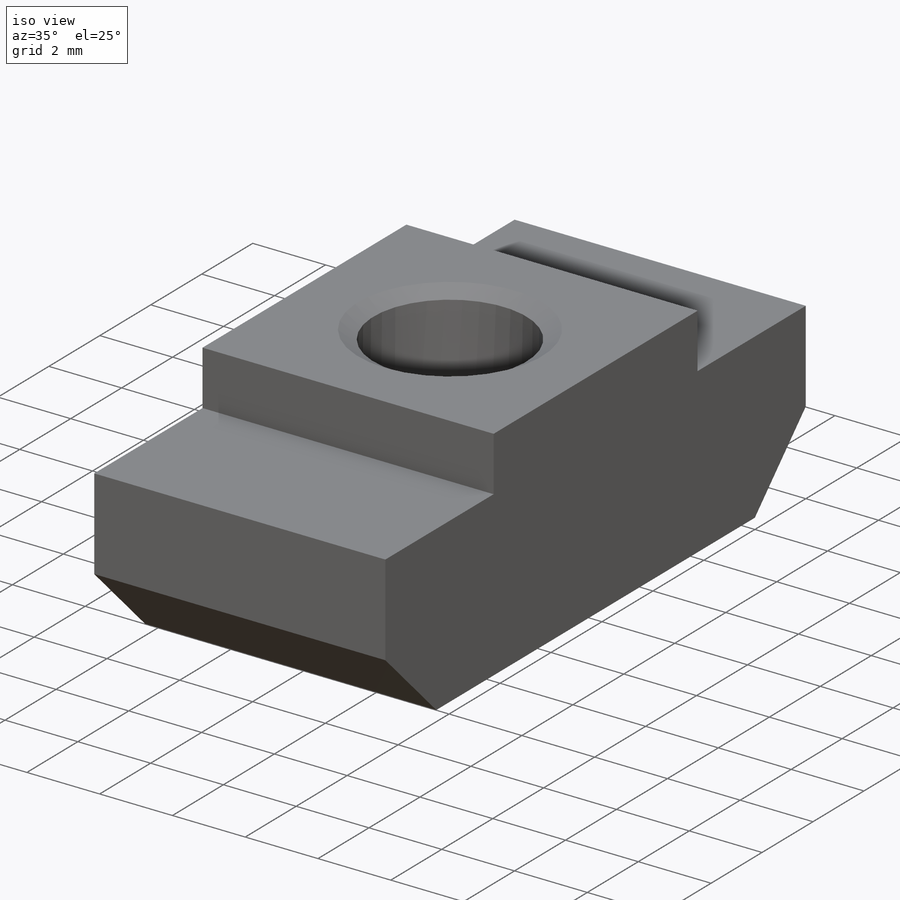
[diagram: iso view]
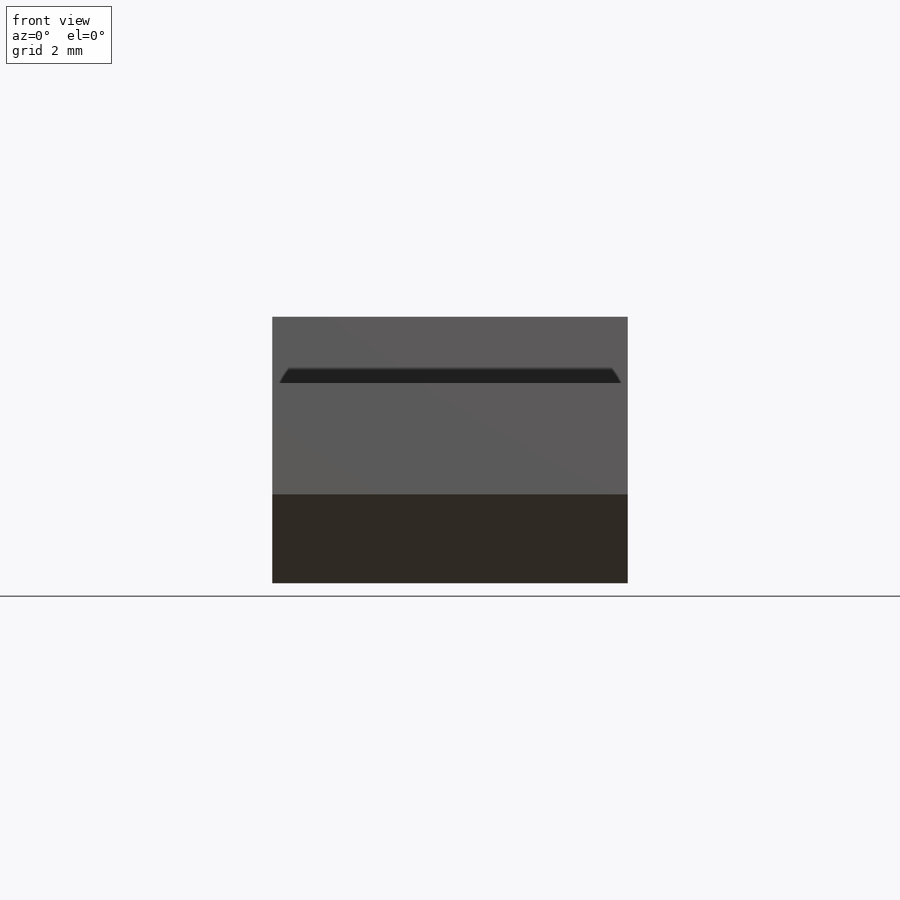
[diagram: front view]
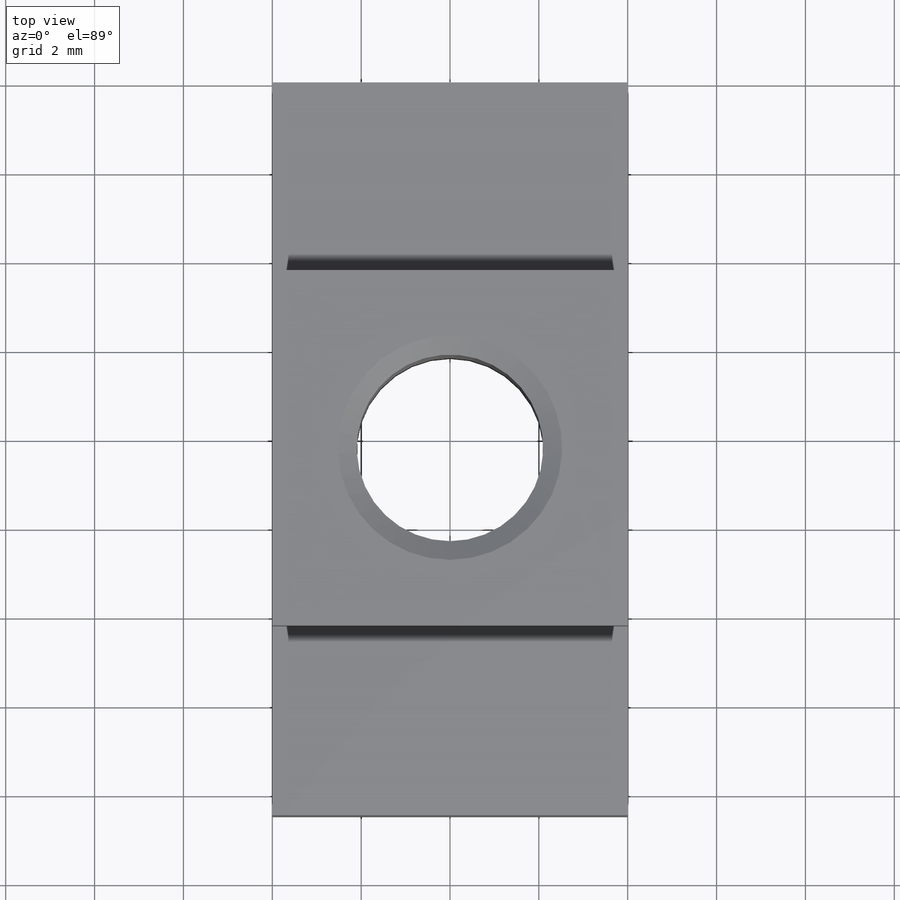
[diagram: top view]
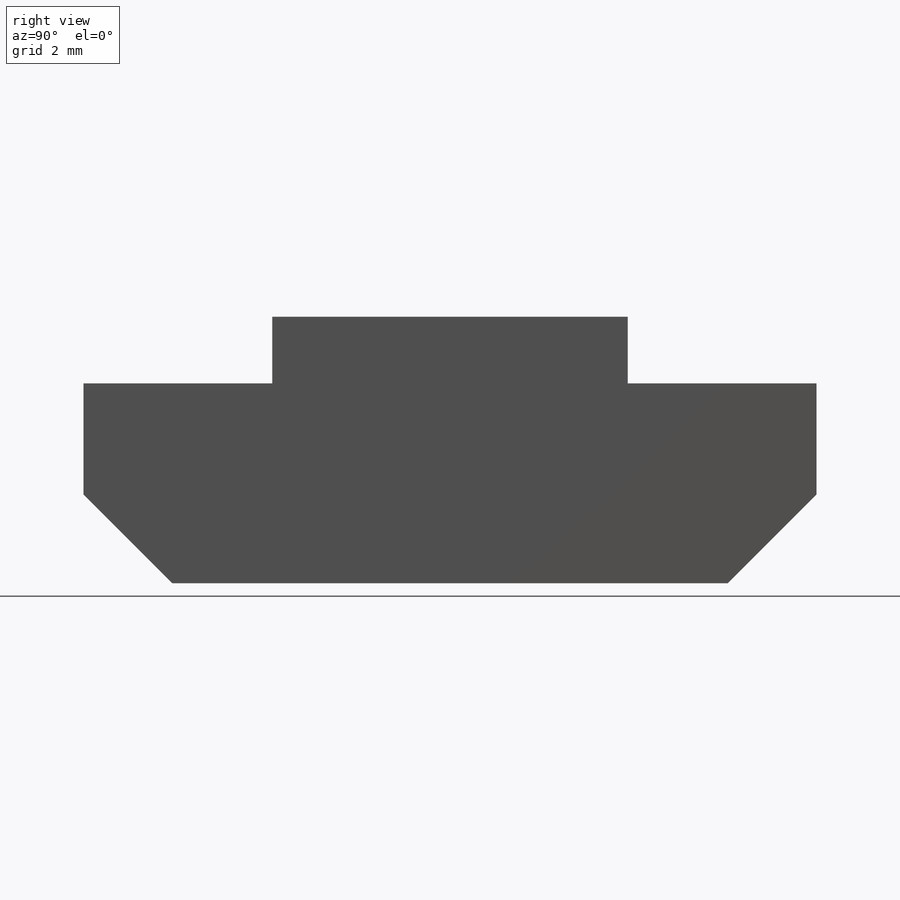
[diagram: right view]
SOLIDWORKS PART (.sldprt)
format: sldprt  version: not decoded by parser v0  size: 204,288 bytes
history: native  units: mm
features: sketch x4, plane x3, material x1, extrude x1, hole x1, thread x1, cut_extrude x1 (+9 scaffold rows collapsed)
feature tree (21):
  scaffold x9  (default folders/planes/origin — collapsed)
  material  "Acciaio al carbonio semplice"
  plane  "Piano frontale"
  plane  "Piano superiore"
  plane  "Piano destro"
  sketch  "Schizzo1"  dims[c1.D1=15.0mm c1.D2=6.0mm c1.D3=8.0mm c1.D4=1.0mm c1.D5=9.0mm c1.D6=3.0mm c2.D1=~0.819737mm c3.D1=~219.418489deg c4.D1=~5.002693mm c5.D1=135.0deg c5.D4=5.0mm c6.D1=8.0mm c6.D2=6.0mm c6.D3=5.0mm c6.D4=~0.790659mm c7.D4=135.0deg]
  extrude  "Estrusione-Estrusione1"  Depth=16.5mm
  hole  "Foro filettato M5-1"  Diameter=4.2mm Depth=6mm
  sketch  "Schizzo3"
  sketch  "Schizzo2"  dims[hole-wizard template sketch: 54 standard entries collapsed; hole parameters kept: c17.Thru Tap Drill Dia.=4.2mm c17.Thru Tap Drill Depth=6.0mm c17.Near C'Sink Dia.=5.05mm c17.D4=~3.666174mm c17.Near C'Sink Angle=120.0deg]
  thread  "Filettatura del foro1"  Diameter=5mm  [1 undecoded]
  sketch  "Schizzo4"  dims[D1=1.5mm D2=2.0mm D3=8.0mm]
  cut_extrude  "Taglio-Estrusione1"  Depth=10mm
decode coverage: 7 of 8 modeling features carry decoded parameters
note: ~ marks probable driven/reference dimensions
note: 1 parameter value undecoded
note: suppression state not decoded; provenance and decode notes live in map.json
